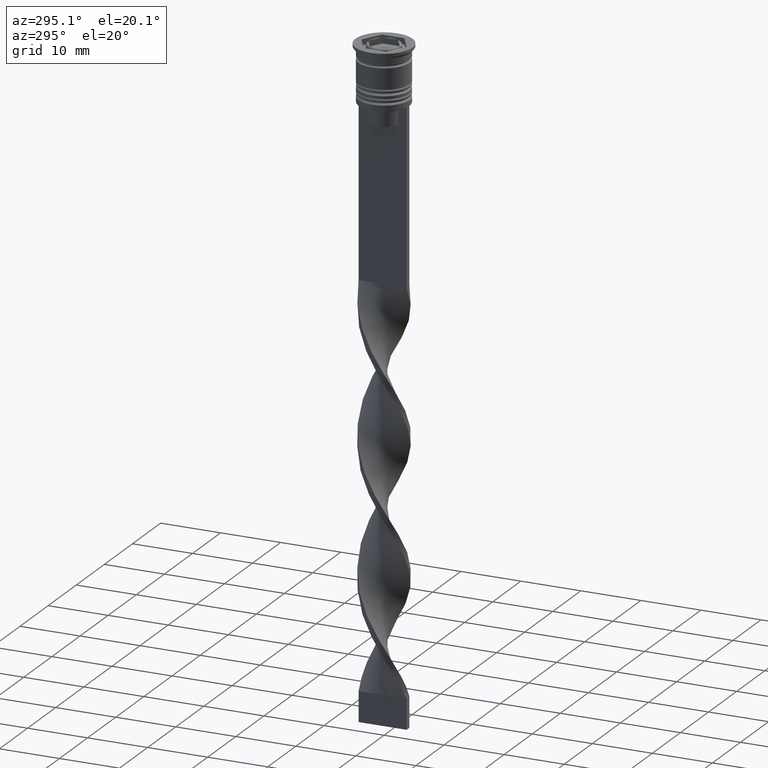
[diagram: clean part render]
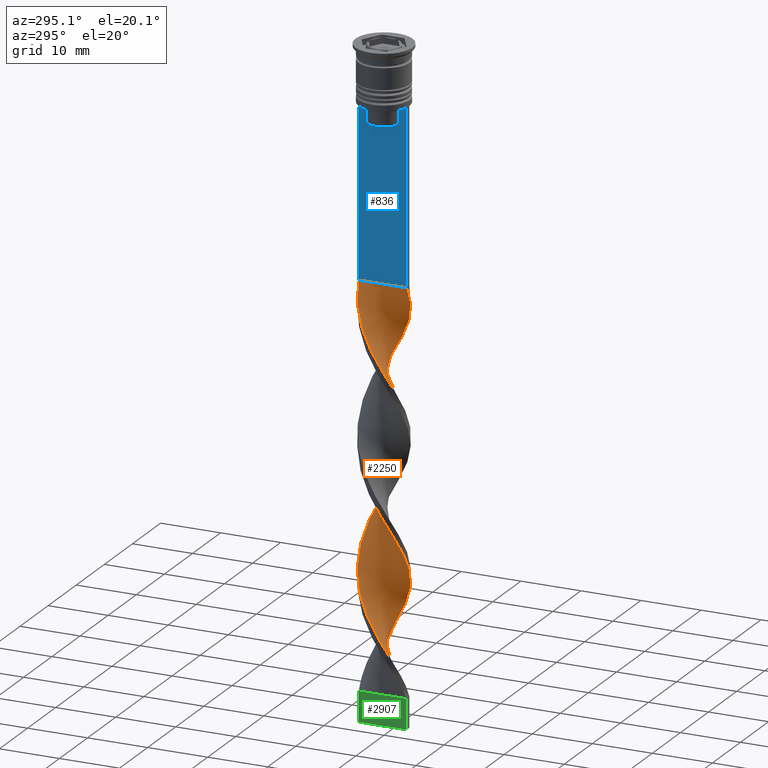
[diagram: same view with three faces highlighted in distinct colors, each labeled with its STEP entity id]
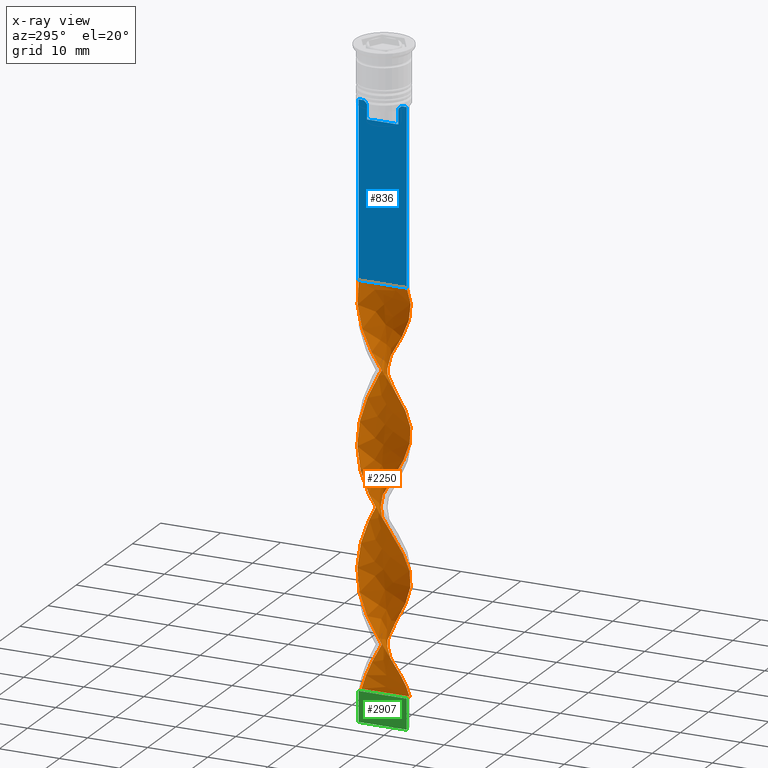
[diagram: x-ray of the same camera — body ghosted, the three highlighted faces saturated]
A machine part, auxiliary view with three faces highlighted in distinct colors.
The next image is the same camera in x-ray (body ghosted, the three faces saturated) — at least one of them is partly hidden behind the body in this view.
Their STEP definitions:

[orange] entity #2250 — the highlighted face is a freeform B-spline surface patch.
#6 = CARTESIAN_POINT ( 'NONE',  ( 3.562762527220391551, 1.885927669512849514, -74.03846153846153300 ) ) ;
#8 = CARTESIAN_POINT ( 'NONE',  ( -1.874433786711571015, -3.602232165184603652, -56.26923076923076650 ) ) ;
#19 = CARTESIAN_POINT ( 'NONE',  ( -4.032828965577023972, 0.4752569063773721680, -91.80769230769230660 ) ) ;
#21 = CARTESIAN_POINT ( 'NONE',  ( -2.278235258877631342, -3.325604321804801256, -99.42307692307691980 ) ) ;
#36 = CARTESIAN_POINT ( 'NONE',  ( 4.032828965577023084, -0.4752569063773718350, -69.80769230769230660 ) ) ;
#38 = CARTESIAN_POINT ( 'NONE',  ( -3.562762527220391551, -1.885927669512849070, -96.03846153846154721 ) ) ;
#53 = CARTESIAN_POINT ( 'NONE',  ( 4.029378707462731413, 0.5036723384328407604, -71.50000000000001421 ) ) ;
#55 = CARTESIAN_POINT ( 'NONE',  ( -3.917367414262926673, 0.9509114268274357906, -90.96153846153845279 ) ) ;
#61 = CARTESIAN_POINT ( 'NONE',  ( -2.682036731043688782, 3.048976478425001524, -66.42307692307694822 ) ) ;
#68 = CARTESIAN_POINT ( 'NONE',  ( -1.899779198837471705, 3.588929866731989105, -85.03846153846153300 ) ) ;
#89 = CARTESIAN_POINT ( 'NONE',  ( 2.703462203165885924, -3.029995166449922728, -64.73076923076921219 ) ) ;
#119 = CARTESIAN_POINT ( 'NONE',  ( 2.682036731043690114, -3.048976478425000636, -44.42307692307692690 ) ) ;
#160 = CARTESIAN_POINT ( 'NONE',  ( 2.278235258877630010, -3.325604321804802588, -43.57692307692307310 ) ) ;
#170 = CARTESIAN_POINT ( 'NONE',  ( 3.801905862948830261, 1.426565947277498081, -96.88461538461538680 ) ) ;
#174 = CARTESIAN_POINT ( 'NONE',  ( -3.562762527220391551, -1.885927669512849070, -52.03846153846154010 ) ) ;
#176 = CARTESIAN_POINT ( 'NONE',  ( 4.031103836519878136, -0.01420771602773549663, -50.34615384615384670 ) ) ;
#184 = CARTESIAN_POINT ( 'NONE',  ( 1.899779198837473038, 3.588929866731988660, -57.96153846153846700 ) ) ;
#195 = CARTESIAN_POINT ( 'NONE',  ( -1.899779198837471705, 3.588929866731989549, -41.03846153846154010 ) ) ;
#197 = CARTESIAN_POINT ( 'NONE',  ( -4.031103836519878136, -0.01420771602773408804, -48.65384615384615330 ) ) ;
#205 = CARTESIAN_POINT ( 'NONE',  ( 3.026746007048731979, 2.662481663564005618, -99.42307692307691980 ) ) ;
#212 = CARTESIAN_POINT ( 'NONE',  ( 3.575967836940204148, 1.860767053977794516, -97.73076923076922640 ) ) ;
#222 = CARTESIAN_POINT ( 'NONE',  ( 3.791755605066377655, -1.453329977707797260, -91.80769230769230660 ) ) ;
#227 = CARTESIAN_POINT ( 'NONE',  ( 3.026746007048730647, -2.662481663564007839, -65.57692307692308020 ) ) ;
#229 = CARTESIAN_POINT ( 'NONE',  ( -4.032828965577023972, 0.4752569063773721680, -47.80769230769230660 ) ) ;
#241 = EDGE_CURVE ( 'NONE', #2775, #1376, #2264, .T. ) ;
#248 = CARTESIAN_POINT ( 'NONE',  ( -3.910567156264554534, -0.9785011580703186773, -50.34615384615384670 ) ) ;
#250 = CARTESIAN_POINT ( 'NONE',  ( 4.032828965577023084, 0.4752569063773717239, -95.19230769230769340 ) ) ;
#270 = CARTESIAN_POINT ( 'NONE',  ( 0.4717917484372050052, -4.003425101847986944, -84.19230769230769340 ) ) ;
#285 = CARTESIAN_POINT ( 'NONE',  ( -0.5000000000000000000, 4.000000000000000000, -82.50000000000000000 ) ) ;
#287 = CARTESIAN_POINT ( 'NONE',  ( 0.9578955639853692361, 3.946139212084844416, -79.96153846153846700 ) ) ;
#299 = CARTESIAN_POINT ( 'NONE',  ( -3.575967836940203703, 1.860767053977795404, -89.26923076923077360 ) ) ;
#302 = CARTESIAN_POINT ( 'NONE',  ( 4.031103836519878136, 0.01420771602773273322, -70.65384615384614619 ) ) ;
#317 = CARTESIAN_POINT ( 'NONE',  ( -4.031103836519878136, -0.01420771602773408804, -92.65384615384616041 ) ) ;
#320 = CARTESIAN_POINT ( 'NONE',  ( 3.917367414262926673, -0.9509114268274362347, -68.96153846153846700 ) ) ;
#321 = EDGE_LOOP ( 'NONE', ( #1331, #2447, #1427, #1393 ) ) ;
#327 = CARTESIAN_POINT ( 'NONE',  ( 3.350029810931577590, 2.294968160678091618, -54.57692307692308731 ) ) ;
#331 = CARTESIAN_POINT ( 'NONE',  ( 1.416164675348472235, 3.774185688634722702, -79.11538461538461320 ) ) ;
#334 = CARTESIAN_POINT ( 'NONE',  ( 0.4717917484372087800, 4.003425101847986056, -80.80769230769230660 ) ) ;
#345 = CARTESIAN_POINT ( 'NONE',  ( 2.682036731043689670, -3.048976478425000636, -44.42307692307691980 ) ) ;
#379 = CARTESIAN_POINT ( 'NONE',  ( -0.5000000000000000000, 4.000000000000000000, -38.50000000000000000 ) ) ;
#410 = CARTESIAN_POINT ( 'NONE',  ( 3.333769449374405003, -2.318525361317902878, -46.11538461538462741 ) ) ;
#422 = CARTESIAN_POINT ( 'NONE',  ( 3.026746007048731979, 2.662481663564005618, -55.42307692307691980 ) ) ;
#432 = CARTESIAN_POINT ( 'NONE',  ( 0.9856879328890439940, 3.939289008388870084, -59.65384615384615330 ) ) ;
#439 = CARTESIAN_POINT ( 'NONE',  ( 3.333769449374404559, -2.318525361317903322, -90.11538461538462741 ) ) ;
#441 = LINE ( 'NONE', #2688, #3531 ) ;
#445 = CARTESIAN_POINT ( 'NONE',  ( 4.029378707462731413, -0.5036723384328416486, -49.50000000000000000 ) ) ;
#453 = CARTESIAN_POINT ( 'NONE',  ( 1.874433786711570349, -3.602232165184604096, -86.73076923076922640 ) ) ;
#460 = CARTESIAN_POINT ( 'NONE',  ( -1.442733565863256961, 3.764109437560429150, -40.19230769230769340 ) ) ;
#469 = CARTESIAN_POINT ( 'NONE',  ( 0.9856879328890441050, 3.939289008388869640, -59.65384615384615330 ) ) ;
#480 = CARTESIAN_POINT ( 'NONE',  ( -1.874433786711570793, -3.602232165184603652, -56.26923076923076650 ) ) ;
#482 = CARTESIAN_POINT ( 'NONE',  ( -2.301620701001681368, -3.309462516590953474, -79.11538461538461320 ) ) ;
#492 = CARTESIAN_POINT ( 'NONE',  ( -0.9856879328890445491, -3.939289008388869640, -81.65384615384616041 ) ) ;
#498 = CARTESIAN_POINT ( 'NONE',  ( -2.682036731043691002, -3.048976478424999303, -54.57692307692308731 ) ) ;
#500 = CARTESIAN_POINT ( 'NONE',  ( 3.801905862948830261, 1.426565947277498081, -96.88461538461538680 ) ) ;
#516 = CARTESIAN_POINT ( 'NONE',  ( 2.682036731043689670, -3.048976478425000636, -88.42307692307693401 ) ) ;
#540 = CARTESIAN_POINT ( 'NONE',  ( -0.4717917484372064485, -4.003425101847986056, -58.80769230769231370 ) ) ;
#556 = CARTESIAN_POINT ( 'NONE',  ( 0.4999999999999994449, -4.000000000000000000, -104.5000000000000142 ) ) ;
#558 = CARTESIAN_POINT ( 'NONE',  ( -3.910567156264554534, -0.9785011580703186773, -94.34615384615385381 ) ) ;
#572 = CARTESIAN_POINT ( 'NONE',  ( -0.4717917484372064485, -4.003425101847986056, -102.8076923076923208 ) ) ;
#574 = CARTESIAN_POINT ( 'NONE',  ( 1.416164675348472235, 3.774185688634722702, -79.11538461538461320 ) ) ;
#602 = CARTESIAN_POINT ( 'NONE',  ( 3.575967836940204148, 1.860767053977794516, -53.73076923076923350 ) ) ;
#609 = CARTESIAN_POINT ( 'NONE',  ( 4.032828965577023084, -0.4752569063773718350, -69.80769230769230660 ) ) ;
#684 = CARTESIAN_POINT ( 'NONE',  ( -1.416164675348468904, 3.774185688634723590, -63.88461538461538680 ) ) ;
#691 = CARTESIAN_POINT ( 'NONE',  ( 4.029378707462731413, -0.5036723384328416486, -49.50000000000000000 ) ) ;
#699 = FACE_OUTER_BOUND ( 'NONE', #321, .T. ) ;
#704 = CARTESIAN_POINT ( 'NONE',  ( 0.5000000000000005551, 4.000000000000000000, -104.5000000000000142 ) ) ;
#711 = CARTESIAN_POINT ( 'NONE',  ( -0.01431206711095789862, -4.060710991611130360, -83.34615384615386802 ) ) ;
#730 = CARTESIAN_POINT ( 'NONE',  ( 2.301620701001679148, 3.309462516590954806, -101.1153846153846132 ) ) ;
#735 = CARTESIAN_POINT ( 'NONE',  ( -3.575967836940203703, 1.860767053977795404, -45.26923076923076650 ) ) ;
#737 = CARTESIAN_POINT ( 'NONE',  ( -3.575967836940204148, -1.860767053977794072, -75.73076923076924061 ) ) ;
#746 = CARTESIAN_POINT ( 'NONE',  ( -1.442733565863260736, -3.764109437560427818, -80.80769230769230660 ) ) ;
#753 = CARTESIAN_POINT ( 'NONE',  ( -0.9856879328890421066, 3.939289008388869640, -39.34615384615384670 ) ) ;
#755 = CARTESIAN_POINT ( 'NONE',  ( 3.791755605066377655, -1.453329977707797260, -91.80769230769230660 ) ) ;
#767 = CARTESIAN_POINT ( 'NONE',  ( -0.4717917484372037285, 4.003425101847986944, -62.19230769230769340 ) ) ;
#778 = CARTESIAN_POINT ( 'NONE',  ( -0.5000000000000000000, 4.000000000000000000, -38.50000000000000000 ) ) ;
#786 = CARTESIAN_POINT ( 'NONE',  ( 2.301620701001679148, 3.309462516590954806, -57.11538461538461320 ) ) ;
#794 = CARTESIAN_POINT ( 'NONE',  ( 1.899779198837470373, -3.588929866731989993, -63.03846153846154010 ) ) ;
#796 = CARTESIAN_POINT ( 'NONE',  ( -3.026746007048732423, -2.662481663564005174, -77.42307692307693401 ) ) ;
#809 = CARTESIAN_POINT ( 'NONE',  ( -3.791755605066377655, -1.453329977707796816, -95.19230769230769340 ) ) ;
#811 = CARTESIAN_POINT ( 'NONE',  ( -2.682036731043690558, -3.048976478424999303, -54.57692307692308731 ) ) ;
#830 = CARTESIAN_POINT ( 'NONE',  ( 3.007903090209048891, 2.683750919871450868, -75.73076923076924061 ) ) ;
#832 = CARTESIAN_POINT ( 'NONE',  ( -0.01431206711095556715, 4.060710991611130360, -81.65384615384616041 ) ) ;
#860 = CARTESIAN_POINT ( 'NONE',  ( -2.703462203165886368, 3.029995166449922284, -86.73076923076922640 ) ) ;
#862 = CARTESIAN_POINT ( 'NONE',  ( -1.416164675348469792, -3.774185688634723146, -101.1153846153846132 ) ) ;
#875 = CARTESIAN_POINT ( 'NONE',  ( 2.682036731043692779, 3.048976478424997527, -76.57692307692306599 ) ) ;
#879 = CARTESIAN_POINT ( 'NONE',  ( -3.026746007048731091, 2.662481663564006951, -87.57692307692308020 ) ) ;
#891 = CARTESIAN_POINT ( 'NONE',  ( 2.703462203165886368, 3.029995166449921840, -56.26923076923076650 ) ) ;
#945 = CARTESIAN_POINT ( 'NONE',  ( 1.874433786711570349, -3.602232165184604096, -42.73076923076923350 ) ) ;
#953 = CARTESIAN_POINT ( 'NONE',  ( 3.910567156264554534, -0.9785011580703200096, -48.65384615384615330 ) ) ;
#961 = CARTESIAN_POINT ( 'NONE',  ( 4.031103836519878136, -0.01420771602773549663, -50.34615384615384670 ) ) ;
#969 = CARTESIAN_POINT ( 'NONE',  ( -3.791755605066377655, 1.453329977707796816, -69.80769230769230660 ) ) ;
#981 = CARTESIAN_POINT ( 'NONE',  ( -0.5000000000000000000, 4.000000000000000000, -38.50000000000000000 ) ) ;
#984 = CARTESIAN_POINT ( 'NONE',  ( -4.031103836519877248, 0.01420771602773772055, -72.34615384615383959 ) ) ;
#996 = CARTESIAN_POINT ( 'NONE',  ( -3.917367414262927561, -0.9509114268274349024, -74.03846153846153300 ) ) ;
#1004 = CARTESIAN_POINT ( 'NONE',  ( -0.01431206711095789688, -4.060710991611130360, -39.34615384615384670 ) ) ;
#1013 = CARTESIAN_POINT ( 'NONE',  ( 0.9578955639853675708, -3.946139212084843972, -85.03846153846153300 ) ) ;
#1018 = CARTESIAN_POINT ( 'NONE',  ( 3.917367414262926673, -0.9509114268274362347, -68.96153846153846700 ) ) ;
#1020 = CARTESIAN_POINT ( 'NONE',  ( 3.007903090209047559, -2.683750919871451757, -89.26923076923077360 ) ) ;
#1031 = CARTESIAN_POINT ( 'NONE',  ( 0.5000000000000005551, 4.000000000000000000, -60.50000000000000000 ) ) ;
#1040 = CARTESIAN_POINT ( 'NONE',  ( 3.333769449374405003, -2.318525361317902878, -90.11538461538462741 ) ) ;
#1051 = CARTESIAN_POINT ( 'NONE',  ( -3.910567156264554534, 0.9785011580703212308, -70.65384615384614619 ) ) ;
#1060 = CARTESIAN_POINT ( 'NONE',  ( 3.575967836940203703, -1.860767053977795404, -67.26923076923077360 ) ) ;
#1062 = CARTESIAN_POINT ( 'NONE',  ( 0.9578955639853675708, -3.946139212084844416, -85.03846153846153300 ) ) ;
#1077 = CARTESIAN_POINT ( 'NONE',  ( -2.278235258877631342, -3.325604321804801256, -99.42307692307691980 ) ) ;
#1079 = CARTESIAN_POINT ( 'NONE',  ( 2.278235258877630010, -3.325604321804802588, -87.57692307692308020 ) ) ;
#1094 = CARTESIAN_POINT ( 'NONE',  ( 2.278235258877631786, 3.325604321804800811, -77.42307692307693401 ) ) ;
#1096 = CARTESIAN_POINT ( 'NONE',  ( 0.01431206711095605461, -4.060710991611130360, -59.65384615384615330 ) ) ;
#1116 = CARTESIAN_POINT ( 'NONE',  ( -3.026746007048731091, 2.662481663564006951, -87.57692307692308020 ) ) ;
#1134 = CARTESIAN_POINT ( 'NONE',  ( -3.007903090209048003, -2.683750919871450868, -97.73076923076922640 ) ) ;
#1150 = CARTESIAN_POINT ( 'NONE',  ( -0.4717917484372064485, -4.003425101847986056, -102.8076923076923208 ) ) ;
#1163 = EDGE_CURVE ( 'NONE', #1622, #1376, #3509, .T. ) ;
#1169 = CARTESIAN_POINT ( 'NONE',  ( -3.801905862948830706, 1.426565947277498525, -90.11538461538462741 ) ) ;
#1213 = CARTESIAN_POINT ( 'NONE',  ( 0.5000000000000005551, 4.000000000000000000, -104.5000000000000142 ) ) ;
#1214 = CARTESIAN_POINT ( 'NONE',  ( 3.562762527220391107, -1.885927669512850402, -46.96153846153845990 ) ) ;
#1241 = CARTESIAN_POINT ( 'NONE',  ( -2.278235258877629565, 3.325604321804802588, -65.57692307692308020 ) ) ;
#1257 = CARTESIAN_POINT ( 'NONE',  ( -0.9578955639853662385, 3.946139212084844416, -63.03846153846153300 ) ) ;
#1266 = CARTESIAN_POINT ( 'NONE',  ( -4.031103836519877248, 0.01420771602773772055, -72.34615384615383959 ) ) ;
#1273 = CARTESIAN_POINT ( 'NONE',  ( -2.278235258877631342, -3.325604321804801256, -55.42307692307691980 ) ) ;
#1288 = CARTESIAN_POINT ( 'NONE',  ( -2.278235258877629565, 3.325604321804802588, -65.57692307692308020 ) ) ;
#1293 = CARTESIAN_POINT ( 'NONE',  ( 1.442733565863255851, -3.764109437560429594, -62.19230769230769340 ) ) ;
#1295 = CARTESIAN_POINT ( 'NONE',  ( 1.416164675348469126, -3.774185688634723590, -85.88461538461538680 ) ) ;
#1303 = CARTESIAN_POINT ( 'NONE',  ( -3.333769449374404115, 2.318525361317905098, -68.11538461538461320 ) ) ;
#1305 = DIRECTION ( 'NONE',  ( 0.000000000000000000, 1.000000000000000000, 0.000000000000000000 ) ) ;
#1307 = CARTESIAN_POINT ( 'NONE',  ( -2.301620701001678704, 3.309462516590955250, -41.88461538461537970 ) ) ;
#1310 = CARTESIAN_POINT ( 'NONE',  ( -3.801905862948831150, -1.426565947277496083, -74.88461538461538680 ) ) ;
#1320 = CARTESIAN_POINT ( 'NONE',  ( -2.301620701001681368, -3.309462516590953474, -79.11538461538461320 ) ) ;
#1327 = CARTESIAN_POINT ( 'NONE',  ( -3.910567156264554534, -0.9785011580703186773, -50.34615384615384670 ) ) ;
#1331 = ORIENTED_EDGE ( 'NONE', *, *, #1358, .T. ) ;
#1345 = CARTESIAN_POINT ( 'NONE',  ( -3.333769449374405447, -2.318525361317902878, -52.88461538461538680 ) ) ;
#1347 = CARTESIAN_POINT ( 'NONE',  ( 0.5000000000000005551, 4.000000000000000000, -104.5000000000000142 ) ) ;
#1358 = EDGE_CURVE ( 'NONE', #2469, #2775, #441, .T. ) ;
#1368 = CARTESIAN_POINT ( 'NONE',  ( -3.026746007048731091, 2.662481663564006951, -43.57692307692307310 ) ) ;
#1376 = VERTEX_POINT ( 'NONE', #2122 ) ;
#1387 = CARTESIAN_POINT ( 'NONE',  ( -1.442733565863256961, 3.764109437560429150, -84.19230769230769340 ) ) ;
#1393 = ORIENTED_EDGE ( 'NONE', *, *, #2559, .F. ) ;
#1404 = CARTESIAN_POINT ( 'NONE',  ( -0.01431206711095556715, 4.060710991611130360, -81.65384615384616041 ) ) ;
#1406 = CARTESIAN_POINT ( 'NONE',  ( 3.791755605066378987, 1.453329977707795484, -73.19230769230770761 ) ) ;
#1422 = CARTESIAN_POINT ( 'NONE',  ( 2.682036731043692335, 3.048976478424997527, -76.57692307692306599 ) ) ;
#1427 = ORIENTED_EDGE ( 'NONE', *, *, #1163, .F. ) ;
#1438 = CARTESIAN_POINT ( 'NONE',  ( 2.278235258877631786, 3.325604321804800811, -77.42307692307693401 ) ) ;
#1456 = CARTESIAN_POINT ( 'NONE',  ( 3.026746007048730647, -2.662481663564007839, -65.57692307692308020 ) ) ;
#1474 = CARTESIAN_POINT ( 'NONE',  ( 3.350029810931577590, 2.294968160678091174, -54.57692307692308731 ) ) ;
#1491 = CARTESIAN_POINT ( 'NONE',  ( 0.4717917484372050052, -4.003425101847986944, -40.19230769230769340 ) ) ;
#1517 = CARTESIAN_POINT ( 'NONE',  ( 3.007903090209047559, -2.683750919871451757, -45.26923076923076650 ) ) ;
#1530 = CARTESIAN_POINT ( 'NONE',  ( 3.007903090209047559, -2.683750919871451757, -45.26923076923076650 ) ) ;
#1546 = CARTESIAN_POINT ( 'NONE',  ( 0.4717917484372050052, -4.003425101847986944, -84.19230769230769340 ) ) ;
#1561 = CARTESIAN_POINT ( 'NONE',  ( 0.01431206711095876771, 4.060710991611130360, -61.34615384615383249 ) ) ;
#1570 = CARTESIAN_POINT ( 'NONE',  ( -2.703462203165886812, -3.029995166449921840, -78.26923076923075939 ) ) ;
#1582 = CARTESIAN_POINT ( 'NONE',  ( 3.562762527220391107, -1.885927669512850402, -90.96153846153845279 ) ) ;
#1591 = CARTESIAN_POINT ( 'NONE',  ( -0.4717917484372064485, -4.003425101847986056, -58.80769230769231370 ) ) ;
#1593 = CARTESIAN_POINT ( 'NONE',  ( 2.703462203165886368, 3.029995166449921840, -100.2692307692307878 ) ) ;
#1603 = CARTESIAN_POINT ( 'NONE',  ( 3.007903090209047559, -2.683750919871451757, -89.26923076923077360 ) ) ;
#1610 = CARTESIAN_POINT ( 'NONE',  ( 0.4999999999999994449, -4.000000000000000000, -60.50000000000000000 ) ) ;
#1612 = CARTESIAN_POINT ( 'NONE',  ( -2.703462203165886368, 3.029995166449922284, -42.73076923076923350 ) ) ;
#1622 = VERTEX_POINT ( 'NONE', #1213 ) ;
#1629 = CARTESIAN_POINT ( 'NONE',  ( 3.562762527220391107, -1.885927669512850402, -90.96153846153845279 ) ) ;
#1644 =( BOUNDED_CURVE ( )  B_SPLINE_CURVE ( 2, ( #1782, #2864, #1491, #2594, #2346, #945, #3432, #119, #1530, #3147, #1214, #2290, #2049, #691, #961, #1800, #2899, #2013, #3110, #1474, #422, #3450, #786, #184, #2434, #469, #1031, #1561, #767, #3237, #1838, #2702, #1288, #3526, #2138, #1303, #2929, #1873, #1051, #2162, #1266, #2965, #996, #3217, #2120, #2418, #3263, #2665, #1320, #1890, #746, #492, #1823, #711, #1546, #1013, #3466, #453, #2915, #2102, #1603, #439, #1582, #222, #1853, #2401, #3484, #2649, #3506, #170, #2945, #2686, #205, #2380, #730, #3200, #3442, #3121, #704 ),
 .UNSPECIFIED., .F., .T. ) 
 B_SPLINE_CURVE_WITH_KNOTS ( ( 3, 2, 2, 2, 2, 2, 2, 2, 2, 2, 2, 2, 2, 2, 2, 2, 2, 2, 2, 2, 2, 2, 2, 2, 2, 2, 2, 2, 2, 2, 2, 2, 2, 2, 2, 2, 2, 2, 2, 3 ),
 ( 0.000000000000000000, 0.01923076923076923184, 0.03846153846153846367, 0.05769230769230768857, 0.07692307692307692735, 0.09615384615384615918, 0.1153846153846153771, 0.1346153846153846090, 0.1538461538461538547, 0.1730769230769230449, 0.1923076923076923184, 0.2115384615384615363, 0.2307692307692307543, 0.2500000000000000000, 0.2692307692307692180, 0.2884615384615384359, 0.3076923076923077094, 0.3269230769230769273, 0.3461538461538460898, 0.3653846153846153633, 0.3846153846153846367, 0.4038461538461539102, 0.4230769230769230727, 0.4423076923076922906, 0.4615384615384615086, 0.4807692307692307820, 0.5000000000000000000, 0.5192307692307692735, 0.5384615384615384359, 0.5576923076923077094, 0.5769230769230768718, 0.5961538461538461453, 0.6153846153846154188, 0.6346153846153845812, 0.6538461538461538547, 0.6730769230769230171, 0.6923076923076921796, 0.7115384615384615641, 0.7307692307692307265, 0.7500000000000000000 ),
 .UNSPECIFIED. ) 
 CURVE ( )  GEOMETRIC_REPRESENTATION_ITEM ( )  RATIONAL_B_SPLINE_CURVE ( ( 1.000000000000000000, 0.9927088740980539727, 1.000000000000000000, 0.9927088740980539727, 1.000000000000000000, 0.9927088740980539727, 1.000000000000000000, 0.9927088740980539727, 1.000000000000000000, 0.9927088740980539727, 1.000000000000000000, 0.9927088740980539727, 1.000000000000000000, 0.9927088740980539727, 1.000000000000000000, 0.9927088740980539727, 1.000000000000000000, 0.9927088740980539727, 1.000000000000000000, 0.9927088740980539727, 1.000000000000000000, 0.9927088740980539727, 1.000000000000000000, 0.9927088740980539727, 1.000000000000000000, 0.9927088740980539727, 1.000000000000000000, 0.9927088740980539727, 1.000000000000000000, 0.9927088740980539727, 1.000000000000000000, 0.9927088740980539727, 1.000000000000000000, 0.9927088740980539727, 1.000000000000000000, 0.9927088740980539727, 1.000000000000000000, 0.9927088740980539727, 1.000000000000000000, 0.9927088740980539727, 1.000000000000000000, 0.9927088740980539727, 1.000000000000000000, 0.9927088740980539727, 1.000000000000000000, 0.9927088740980539727, 1.000000000000000000, 0.9927088740980539727, 1.000000000000000000, 0.9927088740980539727, 1.000000000000000000, 0.9927088740980539727, 1.000000000000000000, 0.9927088740980539727, 1.000000000000000000, 0.9927088740980539727, 1.000000000000000000, 0.9927088740980539727, 1.000000000000000000, 0.9927088740980539727, 1.000000000000000000, 0.9927088740980539727, 1.000000000000000000, 0.9927088740980539727, 1.000000000000000000, 0.9927088740980539727, 1.000000000000000000, 0.9927088740980539727, 1.000000000000000000, 0.9927088740980539727, 1.000000000000000000, 0.9927088740980539727, 1.000000000000000000, 0.9927088740980539727, 1.000000000000000000, 0.9927088740980539727, 1.000000000000000000, 0.9927088740980539727, 1.000000000000000000 ) ) 
 REPRESENTATION_ITEM ( '' )  );
#1651 = CARTESIAN_POINT ( 'NONE',  ( 1.874433786711570571, -3.602232165184604096, -86.73076923076922640 ) ) ;
#1667 = CARTESIAN_POINT ( 'NONE',  ( -3.791755605066377655, -1.453329977707796816, -95.19230769230769340 ) ) ;
#1680 = CARTESIAN_POINT ( 'NONE',  ( -2.301620701001678704, 3.309462516590955250, -85.88461538461538680 ) ) ;
#1682 = CARTESIAN_POINT ( 'NONE',  ( -4.032828965577023972, 0.4752569063773721680, -91.80769230769230660 ) ) ;
#1702 = CARTESIAN_POINT ( 'NONE',  ( -1.874433786711571015, -3.602232165184603652, -100.2692307692307878 ) ) ;
#1713 = CARTESIAN_POINT ( 'NONE',  ( 3.801905862948830261, 1.426565947277498081, -52.88461538461537970 ) ) ;
#1717 = CARTESIAN_POINT ( 'NONE',  ( -4.029378707462731413, -0.5036723384328412045, -93.50000000000000000 ) ) ;
#1719 = CARTESIAN_POINT ( 'NONE',  ( 3.910567156264555422, 0.9785011580703162348, -72.34615384615383959 ) ) ;
#1728 = CARTESIAN_POINT ( 'NONE',  ( 0.4717917484372050052, -4.003425101847986944, -40.19230769230769340 ) ) ;
#1782 = CARTESIAN_POINT ( 'NONE',  ( -0.5000000000000000000, -4.000000000000000000, -38.50000000000000000 ) ) ;
#1791 = CARTESIAN_POINT ( 'NONE',  ( -3.007903090209047559, 2.683750919871451757, -67.26923076923077360 ) ) ;
#1800 = CARTESIAN_POINT ( 'NONE',  ( 4.032828965577023084, 0.4752569063773717239, -51.19230769230768630 ) ) ;
#1813 = CARTESIAN_POINT ( 'NONE',  ( 0.9578955639853675708, -3.946139212084844416, -41.03846153846154010 ) ) ;
#1823 = CARTESIAN_POINT ( 'NONE',  ( -0.5000000000000000000, -4.000000000000000000, -82.50000000000000000 ) ) ;
#1828 = CARTESIAN_POINT ( 'NONE',  ( -3.350029810931576701, 2.294968160678092506, -44.42307692307692690 ) ) ;
#1830 = CARTESIAN_POINT ( 'NONE',  ( -3.333769449374404559, 2.318525361317904654, -68.11538461538462741 ) ) ;
#1838 = CARTESIAN_POINT ( 'NONE',  ( -1.416164675348468904, 3.774185688634723590, -63.88461538461538680 ) ) ;
#1843 = CARTESIAN_POINT ( 'NONE',  ( 0.9856879328890412184, -3.939289008388869640, -61.34615384615383249 ) ) ;
#1845 = CARTESIAN_POINT ( 'NONE',  ( 0.4999999999999994449, -4.000000000000000000, -60.50000000000000000 ) ) ;
#1853 = CARTESIAN_POINT ( 'NONE',  ( 3.910567156264554534, -0.9785011580703200096, -92.65384615384616041 ) ) ;
#1858 = CARTESIAN_POINT ( 'NONE',  ( -1.416164675348469792, -3.774185688634723146, -57.11538461538461320 ) ) ;
#1861 = CARTESIAN_POINT ( 'NONE',  ( 4.031103836519878136, -0.01420771602773549663, -94.34615384615385381 ) ) ;
#1873 = CARTESIAN_POINT ( 'NONE',  ( -3.791755605066377655, 1.453329977707796816, -69.80769230769230660 ) ) ;
#1882 = CARTESIAN_POINT ( 'NONE',  ( -0.9856879328890421066, 3.939289008388870084, -39.34615384615384670 ) ) ;
#1890 = CARTESIAN_POINT ( 'NONE',  ( -1.899779198837473482, -3.588929866731988660, -79.96153846153846700 ) ) ;
#1896 = CARTESIAN_POINT ( 'NONE',  ( -3.026746007048731091, 2.662481663564006951, -43.57692307692307310 ) ) ;
#1898 = CARTESIAN_POINT ( 'NONE',  ( -1.442733565863260736, -3.764109437560427818, -80.80769230769230660 ) ) ;
#1913 = CARTESIAN_POINT ( 'NONE',  ( -2.278235258877631342, -3.325604321804801256, -55.42307692307691980 ) ) ;
#1935 = CARTESIAN_POINT ( 'NONE',  ( -0.9856879328890421066, 3.939289008388869640, -83.34615384615386802 ) ) ;
#1937 = CARTESIAN_POINT ( 'NONE',  ( -3.350029810931576701, 2.294968160678092506, -88.42307692307693401 ) ) ;
#1953 = CARTESIAN_POINT ( 'NONE',  ( 3.562762527220391551, 1.885927669512849514, -74.03846153846153300 ) ) ;
#1967 = CARTESIAN_POINT ( 'NONE',  ( -3.007903090209048003, -2.683750919871450868, -97.73076923076922640 ) ) ;
#1970 = CARTESIAN_POINT ( 'NONE',  ( 1.442733565863255851, -3.764109437560429594, -62.19230769230769340 ) ) ;
#1985 = CARTESIAN_POINT ( 'NONE',  ( -3.801905862948830706, 1.426565947277498525, -90.11538461538462741 ) ) ;
#1987 = CARTESIAN_POINT ( 'NONE',  ( 0.4999999999999994449, -4.000000000000000000, -104.5000000000000142 ) ) ;
#1995 = CARTESIAN_POINT ( 'NONE',  ( 1.442733565863258516, 3.764109437560428262, -58.80769230769231370 ) ) ;
#2013 = CARTESIAN_POINT ( 'NONE',  ( 3.801905862948830261, 1.426565947277498081, -52.88461538461538680 ) ) ;
#2049 = CARTESIAN_POINT ( 'NONE',  ( 3.910567156264554534, -0.9785011580703200096, -48.65384615384615330 ) ) ;
#2057 = CARTESIAN_POINT ( 'NONE',  ( 2.301620701001679148, 3.309462516590954806, -57.11538461538461320 ) ) ;
#2076 = CARTESIAN_POINT ( 'NONE',  ( -3.910567156264554534, 0.9785011580703212308, -70.65384615384614619 ) ) ;
#2091 = CARTESIAN_POINT ( 'NONE',  ( 0.01431206711095605461, -4.060710991611130360, -59.65384615384615330 ) ) ;
#2093 = CARTESIAN_POINT ( 'NONE',  ( -4.032828965577023972, -0.4752569063773701696, -73.19230769230770761 ) ) ;
#2102 = CARTESIAN_POINT ( 'NONE',  ( 2.682036731043690114, -3.048976478425000636, -88.42307692307691980 ) ) ;
#2106 = CARTESIAN_POINT ( 'NONE',  ( -3.801905862948830706, 1.426565947277498525, -46.11538461538462030 ) ) ;
#2109 = CARTESIAN_POINT ( 'NONE',  ( 3.791755605066377655, -1.453329977707797260, -47.80769230769230660 ) ) ;
#2120 = CARTESIAN_POINT ( 'NONE',  ( -3.575967836940204148, -1.860767053977794072, -75.73076923076924061 ) ) ;
#2122 = CARTESIAN_POINT ( 'NONE',  ( 0.4999999999999994449, -4.000000000000000000, -104.5000000000000142 ) ) ;
#2128 = CARTESIAN_POINT ( 'NONE',  ( 3.350029810931577590, 2.294968160678091618, -98.57692307692310862 ) ) ;
#2138 = CARTESIAN_POINT ( 'NONE',  ( -3.007903090209047559, 2.683750919871451757, -67.26923076923077360 ) ) ;
#2143 = CARTESIAN_POINT ( 'NONE',  ( -3.917367414262926673, 0.9509114268274357906, -46.96153846153845990 ) ) ;
#2146 = CARTESIAN_POINT ( 'NONE',  ( 1.899779198837473038, 3.588929866731988216, -101.9615384615384670 ) ) ;
#2162 = CARTESIAN_POINT ( 'NONE',  ( -4.029378707462731413, 0.5036723384328422037, -71.50000000000001421 ) ) ;
#2168 = CARTESIAN_POINT ( 'NONE',  ( 3.801905862948829373, -1.426565947277500745, -68.11538461538461320 ) ) ;
#2171 = CARTESIAN_POINT ( 'NONE',  ( 3.026746007048731979, 2.662481663564005618, -99.42307692307691980 ) ) ;
#2188 = CARTESIAN_POINT ( 'NONE',  ( -1.874433786711570793, -3.602232165184603652, -100.2692307692307878 ) ) ;
#2190 = CARTESIAN_POINT ( 'NONE',  ( -3.333769449374405447, -2.318525361317902433, -52.88461538461537970 ) ) ;
#2207 = CARTESIAN_POINT ( 'NONE',  ( 0.9578955639853693471, 3.946139212084843972, -79.96153846153846700 ) ) ;
#2208 = CARTESIAN_POINT ( 'NONE',  ( 3.350029810931575813, -2.294968160678093394, -66.42307692307694822 ) ) ;
#2225 = CARTESIAN_POINT ( 'NONE',  ( -1.442733565863256961, 3.764109437560429150, -84.19230769230769340 ) ) ;
#2244 = CARTESIAN_POINT ( 'NONE',  ( -0.9578955639853687920, -3.946139212084844416, -101.9615384615384670 ) ) ;
#2250 = ADVANCED_FACE ( 'NONE', ( #699 ), #2994, .T. ) ;
#2257 = CARTESIAN_POINT ( 'NONE',  ( -3.350029810931576701, 2.294968160678092506, -88.42307692307691980 ) ) ;
#2259 = CARTESIAN_POINT ( 'NONE',  ( -4.031103836519878136, -0.01420771602773408804, -92.65384615384616041 ) ) ;
#2264 =( BOUNDED_CURVE ( )  B_SPLINE_CURVE ( 2, ( #981, #753, #2723, #195, #1307, #2988, #1896, #1828, #735, #2106, #2143, #3513, #2919, #2934, #248, #3247, #174, #1345, #2440, #498, #1273, #480, #1858, #2408, #1591, #2091, #1610, #1843, #1293, #794, #2707, #3490, #227, #3533, #1060, #2168, #1018, #36, #2479, #53, #2493, #3554, #6, #3304, #830, #875, #1094, #3337, #331, #2207, #3080, #1404, #285, #1935, #2225, #2512, #1680, #860, #1116, #2257, #299, #1985, #3287, #19, #317, #1717, #3031, #809, #3322, #2812, #1967, #2462, #1077, #2188, #2764, #3353, #572, #3063, #556 ),
 .UNSPECIFIED., .F., .T. ) 
 B_SPLINE_CURVE_WITH_KNOTS ( ( 3, 2, 2, 2, 2, 2, 2, 2, 2, 2, 2, 2, 2, 2, 2, 2, 2, 2, 2, 2, 2, 2, 2, 2, 2, 2, 2, 2, 2, 2, 2, 2, 2, 2, 2, 2, 2, 2, 2, 3 ),
 ( 0.000000000000000000, 0.01923076923076923184, 0.03846153846153846367, 0.05769230769230768857, 0.07692307692307692735, 0.09615384615384615918, 0.1153846153846153771, 0.1346153846153846090, 0.1538461538461538547, 0.1730769230769230449, 0.1923076923076923184, 0.2115384615384615363, 0.2307692307692307543, 0.2500000000000000000, 0.2692307692307692180, 0.2884615384615384359, 0.3076923076923077094, 0.3269230769230769273, 0.3461538461538460898, 0.3653846153846153633, 0.3846153846153846367, 0.4038461538461539102, 0.4230769230769230727, 0.4423076923076922906, 0.4615384615384615086, 0.4807692307692307820, 0.5000000000000000000, 0.5192307692307692735, 0.5384615384615384359, 0.5576923076923077094, 0.5769230769230768718, 0.5961538461538461453, 0.6153846153846154188, 0.6346153846153845812, 0.6538461538461538547, 0.6730769230769230171, 0.6923076923076921796, 0.7115384615384615641, 0.7307692307692307265, 0.7500000000000000000 ),
 .UNSPECIFIED. ) 
 CURVE ( )  GEOMETRIC_REPRESENTATION_ITEM ( )  RATIONAL_B_SPLINE_CURVE ( ( 1.000000000000000000, 0.9927088740980539727, 1.000000000000000000, 0.9927088740980539727, 1.000000000000000000, 0.9927088740980539727, 1.000000000000000000, 0.9927088740980539727, 1.000000000000000000, 0.9927088740980539727, 1.000000000000000000, 0.9927088740980539727, 1.000000000000000000, 0.9927088740980539727, 1.000000000000000000, 0.9927088740980539727, 1.000000000000000000, 0.9927088740980539727, 1.000000000000000000, 0.9927088740980539727, 1.000000000000000000, 0.9927088740980539727, 1.000000000000000000, 0.9927088740980539727, 1.000000000000000000, 0.9927088740980539727, 1.000000000000000000, 0.9927088740980539727, 1.000000000000000000, 0.9927088740980539727, 1.000000000000000000, 0.9927088740980539727, 1.000000000000000000, 0.9927088740980539727, 1.000000000000000000, 0.9927088740980539727, 1.000000000000000000, 0.9927088740980539727, 1.000000000000000000, 0.9927088740980539727, 1.000000000000000000, 0.9927088740980539727, 1.000000000000000000, 0.9927088740980539727, 1.000000000000000000, 0.9927088740980539727, 1.000000000000000000, 0.9927088740980539727, 1.000000000000000000, 0.9927088740980539727, 1.000000000000000000, 0.9927088740980539727, 1.000000000000000000, 0.9927088740980539727, 1.000000000000000000, 0.9927088740980539727, 1.000000000000000000, 0.9927088740980539727, 1.000000000000000000, 0.9927088740980539727, 1.000000000000000000, 0.9927088740980539727, 1.000000000000000000, 0.9927088740980539727, 1.000000000000000000, 0.9927088740980539727, 1.000000000000000000, 0.9927088740980539727, 1.000000000000000000, 0.9927088740980539727, 1.000000000000000000, 0.9927088740980539727, 1.000000000000000000, 0.9927088740980539727, 1.000000000000000000, 0.9927088740980539727, 1.000000000000000000, 0.9927088740980539727, 1.000000000000000000 ) ) 
 REPRESENTATION_ITEM ( '' )  );
#2279 = CARTESIAN_POINT ( 'NONE',  ( -2.682036731043690558, -3.048976478424999303, -98.57692307692310862 ) ) ;
#2290 = CARTESIAN_POINT ( 'NONE',  ( 3.791755605066377655, -1.453329977707797260, -47.80769230769230660 ) ) ;
#2308 = CARTESIAN_POINT ( 'NONE',  ( 0.4999999999999994449, -4.000000000000000000, -104.5000000000000142 ) ) ;
#2346 = CARTESIAN_POINT ( 'NONE',  ( 1.416164675348469126, -3.774185688634723590, -41.88461538461537970 ) ) ;
#2368 = CARTESIAN_POINT ( 'NONE',  ( 0.4999999999999997780, -1.333333333333333481, -104.5000000000000142 ) ) ;
#2374 = CARTESIAN_POINT ( 'NONE',  ( -4.029378707462731413, 0.5036723384328422037, -71.50000000000000000 ) ) ;
#2380 = CARTESIAN_POINT ( 'NONE',  ( 2.703462203165886368, 3.029995166449921840, -100.2692307692307878 ) ) ;
#2401 = CARTESIAN_POINT ( 'NONE',  ( 4.029378707462731413, -0.5036723384328416486, -93.50000000000000000 ) ) ;
#2408 = CARTESIAN_POINT ( 'NONE',  ( -0.9578955639853689030, -3.946139212084843972, -57.96153846153846700 ) ) ;
#2410 = CARTESIAN_POINT ( 'NONE',  ( -1.416164675348469792, -3.774185688634723146, -57.11538461538461320 ) ) ;
#2418 = CARTESIAN_POINT ( 'NONE',  ( -3.350029810931578478, -2.294968160678088509, -76.57692307692306599 ) ) ;
#2425 = CARTESIAN_POINT ( 'NONE',  ( 4.029378707462731413, -0.5036723384328416486, -93.49999999999998579 ) ) ;
#2434 = CARTESIAN_POINT ( 'NONE',  ( 1.442733565863258516, 3.764109437560428262, -58.80769230769231370 ) ) ;
#2440 = CARTESIAN_POINT ( 'NONE',  ( -3.007903090209048003, -2.683750919871450868, -53.73076923076923350 ) ) ;
#2443 = CARTESIAN_POINT ( 'NONE',  ( -3.575967836940203703, 1.860767053977795404, -45.26923076923076650 ) ) ;
#2447 = ORIENTED_EDGE ( 'NONE', *, *, #241, .T. ) ;
#2462 = CARTESIAN_POINT ( 'NONE',  ( -2.682036731043691002, -3.048976478424999303, -98.57692307692310862 ) ) ;
#2464 = CARTESIAN_POINT ( 'NONE',  ( -4.029378707462731413, -0.5036723384328412045, -49.50000000000000000 ) ) ;
#2469 = VERTEX_POINT ( 'NONE', #2827 ) ;
#2479 = CARTESIAN_POINT ( 'NONE',  ( 4.031103836519878136, 0.01420771602773273322, -70.65384615384614619 ) ) ;
#2481 = CARTESIAN_POINT ( 'NONE',  ( -3.917367414262926673, 0.9509114268274357906, -46.96153846153845990 ) ) ;
#2493 = CARTESIAN_POINT ( 'NONE',  ( 3.910567156264555422, 0.9785011580703162348, -72.34615384615383959 ) ) ;
#2495 = CARTESIAN_POINT ( 'NONE',  ( 1.874433786711571459, 3.602232165184603652, -78.26923076923075939 ) ) ;
#2512 = CARTESIAN_POINT ( 'NONE',  ( -1.899779198837471705, 3.588929866731989549, -85.03846153846153300 ) ) ;
#2514 = CARTESIAN_POINT ( 'NONE',  ( 3.575967836940203703, -1.860767053977795404, -67.26923076923077360 ) ) ;
#2528 = CARTESIAN_POINT ( 'NONE',  ( -3.333769449374405447, -2.318525361317902433, -96.88461538461538680 ) ) ;
#2535 = CARTESIAN_POINT ( 'NONE',  ( 0.01431206711095876771, 4.060710991611130360, -61.34615384615383959 ) ) ;
#2542 = CARTESIAN_POINT ( 'NONE',  ( -0.9856879328890421066, 3.939289008388870084, -83.34615384615386802 ) ) ;
#2559 = EDGE_CURVE ( 'NONE', #2469, #1622, #1644, .T. ) ;
#2564 = CARTESIAN_POINT ( 'NONE',  ( 1.899779198837470373, -3.588929866731989549, -63.03846153846153300 ) ) ;
#2594 = CARTESIAN_POINT ( 'NONE',  ( 0.9578955639853675708, -3.946139212084843972, -41.03846153846154010 ) ) ;
#2626 = CARTESIAN_POINT ( 'NONE',  ( -1.874433786711570127, 3.602232165184604540, -64.73076923076921219 ) ) ;
#2641 = CARTESIAN_POINT ( 'NONE',  ( -0.4717917484372037285, 4.003425101847986944, -62.19230769230769340 ) ) ;
#2649 = CARTESIAN_POINT ( 'NONE',  ( 4.032828965577023084, 0.4752569063773717239, -95.19230769230769340 ) ) ;
#2658 = CARTESIAN_POINT ( 'NONE',  ( -0.5000000000000000000, -4.000000000000000000, -38.50000000000000000 ) ) ;
#2665 = CARTESIAN_POINT ( 'NONE',  ( -2.703462203165886812, -3.029995166449921840, -78.26923076923077360 ) ) ;
#2678 = CARTESIAN_POINT ( 'NONE',  ( -0.5000000000000000000, -4.000000000000000000, -82.50000000000000000 ) ) ;
#2686 = CARTESIAN_POINT ( 'NONE',  ( 3.350029810931577590, 2.294968160678091174, -98.57692307692310862 ) ) ;
#2688 = CARTESIAN_POINT ( 'NONE',  ( -0.5000000000000000000, -4.000000000000000000, -38.50000000000000000 ) ) ;
#2694 = CARTESIAN_POINT ( 'NONE',  ( -0.01431206711095789688, -4.060710991611130360, -83.34615384615386802 ) ) ;
#2702 = CARTESIAN_POINT ( 'NONE',  ( -1.874433786711570127, 3.602232165184604540, -64.73076923076922640 ) ) ;
#2707 = CARTESIAN_POINT ( 'NONE',  ( 2.301620701001678704, -3.309462516590955250, -63.88461538461538680 ) ) ;
#2710 = CARTESIAN_POINT ( 'NONE',  ( -3.350029810931576701, 2.294968160678092506, -44.42307692307691980 ) ) ;
#2723 = CARTESIAN_POINT ( 'NONE',  ( -1.442733565863256961, 3.764109437560429150, -40.19230769230769340 ) ) ;
#2726 = CARTESIAN_POINT ( 'NONE',  ( 3.910567156264554534, -0.9785011580703200096, -92.65384615384616041 ) ) ;
#2749 = CARTESIAN_POINT ( 'NONE',  ( -3.801905862948830706, 1.426565947277498525, -46.11538461538462741 ) ) ;
#2764 = CARTESIAN_POINT ( 'NONE',  ( -1.416164675348469792, -3.774185688634723146, -101.1153846153846132 ) ) ;
#2766 = CARTESIAN_POINT ( 'NONE',  ( 0.01431206711095605461, -4.060710991611130360, -103.6538461538461604 ) ) ;
#2775 = VERTEX_POINT ( 'NONE', #379 ) ;
#2781 = CARTESIAN_POINT ( 'NONE',  ( -4.029378707462731413, -0.5036723384328412045, -93.49999999999998579 ) ) ;
#2797 = CARTESIAN_POINT ( 'NONE',  ( -0.5000000000000000000, 4.000000000000000000, -82.50000000000000000 ) ) ;
#2806 = CARTESIAN_POINT ( 'NONE',  ( 0.5000000000000005551, 4.000000000000000000, -60.50000000000000000 ) ) ;
#2812 = CARTESIAN_POINT ( 'NONE',  ( -3.333769449374405447, -2.318525361317902878, -96.88461538461538680 ) ) ;
#2814 = CARTESIAN_POINT ( 'NONE',  ( 4.029378707462731413, 0.5036723384328406494, -71.50000000000000000 ) ) ;
#2824 = CARTESIAN_POINT ( 'NONE',  ( 1.416164675348469126, -3.774185688634723590, -41.88461538461537970 ) ) ;
#2827 = CARTESIAN_POINT ( 'NONE',  ( -0.5000000000000000000, -4.000000000000000000, -38.50000000000000000 ) ) ;
#2830 = CARTESIAN_POINT ( 'NONE',  ( -2.703462203165886368, 3.029995166449922284, -86.73076923076922640 ) ) ;
#2864 = CARTESIAN_POINT ( 'NONE',  ( -0.01431206711095789862, -4.060710991611130360, -39.34615384615384670 ) ) ;
#2868 = CARTESIAN_POINT ( 'NONE',  ( 0.5000000000000002220, 1.333333333333333481, -104.5000000000000142 ) ) ;
#2892 = CARTESIAN_POINT ( 'NONE',  ( 4.032828965577023084, 0.4752569063773717239, -51.19230769230768630 ) ) ;
#2899 = CARTESIAN_POINT ( 'NONE',  ( 3.917367414262927561, 0.9509114268274344584, -52.03846153846154010 ) ) ;
#2908 = CARTESIAN_POINT ( 'NONE',  ( 3.562762527220391107, -1.885927669512850402, -46.96153846153845990 ) ) ;
#2915 = CARTESIAN_POINT ( 'NONE',  ( 2.278235258877630010, -3.325604321804802588, -87.57692307692308020 ) ) ;
#2919 = CARTESIAN_POINT ( 'NONE',  ( -4.031103836519878136, -0.01420771602773408804, -48.65384615384615330 ) ) ;
#2921 = CARTESIAN_POINT ( 'NONE',  ( 1.899779198837473038, 3.588929866731988216, -57.96153846153846700 ) ) ;
#2929 = CARTESIAN_POINT ( 'NONE',  ( -3.562762527220391107, 1.885927669512850846, -68.96153846153846700 ) ) ;
#2934 = CARTESIAN_POINT ( 'NONE',  ( -4.029378707462731413, -0.5036723384328412045, -49.50000000000000000 ) ) ;
#2936 = CARTESIAN_POINT ( 'NONE',  ( 0.9856879328890439940, 3.939289008388870084, -103.6538461538461604 ) ) ;
#2945 = CARTESIAN_POINT ( 'NONE',  ( 3.575967836940204148, 1.860767053977794516, -97.73076923076922640 ) ) ;
#2955 = CARTESIAN_POINT ( 'NONE',  ( 3.917367414262927561, 0.9509114268274344584, -96.03846153846154721 ) ) ;
#2965 = CARTESIAN_POINT ( 'NONE',  ( -4.032828965577023972, -0.4752569063773701696, -73.19230769230769340 ) ) ;
#2975 = CARTESIAN_POINT ( 'NONE',  ( -1.899779198837471705, 3.588929866731989105, -41.03846153846154010 ) ) ;
#2988 = CARTESIAN_POINT ( 'NONE',  ( -2.703462203165886368, 3.029995166449922284, -42.73076923076923350 ) ) ;
#2990 = CARTESIAN_POINT ( 'NONE',  ( -3.350029810931578478, -2.294968160678088953, -76.57692307692306599 ) ) ;
#2994 =( BOUNDED_SURFACE ( )  B_SPLINE_SURFACE ( 1, 2, ( 
 ( #2658, #1004, #1728, #1813, #2824, #3366, #160, #345, #1517, #410, #2908, #2109, #953, #445, #176, #2892, #3458, #1713, #602, #327, #3154, #891, #2057, #2921, #1995, #432, #2806, #2535, #2641, #1257, #684, #2626, #1241, #61, #1791, #1830, #3439, #969, #2076, #2374, #984, #2093, #3191, #1310, #737, #2990, #796, #1570, #482, #3225, #1898, #3535, #2678, #2694, #270, #1062, #1295, #1651, #1079, #516, #1020, #1040, #1629, #755, #2726, #2425, #1861, #250, #2955, #500, #212, #2128, #2171, #1593, #3515, #2146, #3249, #2936, #1347 ),
 ( #778, #1882, #460, #2975, #3207, #1612, #1368, #2710, #2443, #2749, #2481, #229, #197, #2464, #1327, #3271, #3556, #2190, #3289, #811, #1913, #8, #2410, #3010, #540, #1096, #1845, #3493, #1970, #2564, #3082, #89, #1456, #2208, #2514, #3098, #320, #609, #302, #2814, #1719, #1406, #1953, #3050, #3308, #1422, #1438, #2495, #574, #287, #334, #832, #2797, #2542, #1387, #68, #3355, #2830, #879, #1937, #3033, #1169, #55, #1682, #2259, #2781, #558, #1667, #38, #2528, #1134, #2279, #21, #1702, #862, #2244, #1150, #2766, #1987 ) ),
 .UNSPECIFIED., .F., .F., .F. ) 
 B_SPLINE_SURFACE_WITH_KNOTS ( ( 2, 2 ),
 ( 3, 2, 2, 2, 2, 2, 2, 2, 2, 2, 2, 2, 2, 2, 2, 2, 2, 2, 2, 2, 2, 2, 2, 2, 2, 2, 2, 2, 2, 2, 2, 2, 2, 2, 2, 2, 2, 2, 2, 3 ),
 ( 0.000000000000000000, 1.000000000000000000 ),
 ( 0.000000000000000000, 0.01923076923076923184, 0.03846153846153846367, 0.05769230769230769551, 0.07692307692307692735, 0.09615384615384615918, 0.1153846153846153910, 0.1346153846153846090, 0.1538461538461538547, 0.1730769230769230727, 0.1923076923076923184, 0.2115384615384615363, 0.2307692307692307820, 0.2500000000000000000, 0.2692307692307692180, 0.2884615384615384359, 0.3076923076923077094, 0.3269230769230769273, 0.3461538461538461453, 0.3653846153846153633, 0.3846153846153846367, 0.4038461538461538547, 0.4230769230769230727, 0.4423076923076922906, 0.4615384615384615641, 0.4807692307692307820, 0.5000000000000000000, 0.5192307692307692735, 0.5384615384615384359, 0.5576923076923077094, 0.5769230769230768718, 0.5961538461538461453, 0.6153846153846154188, 0.6346153846153845812, 0.6538461538461538547, 0.6730769230769231282, 0.6923076923076922906, 0.7115384615384615641, 0.7307692307692307265, 0.7500000000000000000 ),
 .UNSPECIFIED. ) 
 GEOMETRIC_REPRESENTATION_ITEM ( )  RATIONAL_B_SPLINE_SURFACE ( (
 ( 1.000000000000000000, 0.9927088740980539727, 1.000000000000000000, 0.9927088740980539727, 1.000000000000000000, 0.9927088740980539727, 1.000000000000000000, 0.9927088740980539727, 1.000000000000000000, 0.9927088740980539727, 1.000000000000000000, 0.9927088740980539727, 1.000000000000000000, 0.9927088740980539727, 1.000000000000000000, 0.9927088740980539727, 1.000000000000000000, 0.9927088740980539727, 1.000000000000000000, 0.9927088740980539727, 1.000000000000000000, 0.9927088740980539727, 1.000000000000000000, 0.9927088740980539727, 1.000000000000000000, 0.9927088740980539727, 1.000000000000000000, 0.9927088740980539727, 1.000000000000000000, 0.9927088740980539727, 1.000000000000000000, 0.9927088740980539727, 1.000000000000000000, 0.9927088740980539727, 1.000000000000000000, 0.9927088740980539727, 1.000000000000000000, 0.9927088740980539727, 1.000000000000000000, 0.9927088740980539727, 1.000000000000000000, 0.9927088740980539727, 1.000000000000000000, 0.9927088740980539727, 1.000000000000000000, 0.9927088740980539727, 1.000000000000000000, 0.9927088740980539727, 1.000000000000000000, 0.9927088740980539727, 1.000000000000000000, 0.9927088740980539727, 1.000000000000000000, 0.9927088740980539727, 1.000000000000000000, 0.9927088740980539727, 1.000000000000000000, 0.9927088740980539727, 1.000000000000000000, 0.9927088740980539727, 1.000000000000000000, 0.9927088740980539727, 1.000000000000000000, 0.9927088740980539727, 1.000000000000000000, 0.9927088740980539727, 1.000000000000000000, 0.9927088740980539727, 1.000000000000000000, 0.9927088740980539727, 1.000000000000000000, 0.9927088740980539727, 1.000000000000000000, 0.9927088740980539727, 1.000000000000000000, 0.9927088740980539727, 1.000000000000000000, 0.9927088740980539727, 1.000000000000000000),
 ( 1.000000000000000000, 0.9927088740980539727, 1.000000000000000000, 0.9927088740980539727, 1.000000000000000000, 0.9927088740980539727, 1.000000000000000000, 0.9927088740980539727, 1.000000000000000000, 0.9927088740980539727, 1.000000000000000000, 0.9927088740980539727, 1.000000000000000000, 0.9927088740980539727, 1.000000000000000000, 0.9927088740980539727, 1.000000000000000000, 0.9927088740980539727, 1.000000000000000000, 0.9927088740980539727, 1.000000000000000000, 0.9927088740980539727, 1.000000000000000000, 0.9927088740980539727, 1.000000000000000000, 0.9927088740980539727, 1.000000000000000000, 0.9927088740980539727, 1.000000000000000000, 0.9927088740980539727, 1.000000000000000000, 0.9927088740980539727, 1.000000000000000000, 0.9927088740980539727, 1.000000000000000000, 0.9927088740980539727, 1.000000000000000000, 0.9927088740980539727, 1.000000000000000000, 0.9927088740980539727, 1.000000000000000000, 0.9927088740980539727, 1.000000000000000000, 0.9927088740980539727, 1.000000000000000000, 0.9927088740980539727, 1.000000000000000000, 0.9927088740980539727, 1.000000000000000000, 0.9927088740980539727, 1.000000000000000000, 0.9927088740980539727, 1.000000000000000000, 0.9927088740980539727, 1.000000000000000000, 0.9927088740980539727, 1.000000000000000000, 0.9927088740980539727, 1.000000000000000000, 0.9927088740980539727, 1.000000000000000000, 0.9927088740980539727, 1.000000000000000000, 0.9927088740980539727, 1.000000000000000000, 0.9927088740980539727, 1.000000000000000000, 0.9927088740980539727, 1.000000000000000000, 0.9927088740980539727, 1.000000000000000000, 0.9927088740980539727, 1.000000000000000000, 0.9927088740980539727, 1.000000000000000000, 0.9927088740980539727, 1.000000000000000000, 0.9927088740980539727, 1.000000000000000000) ) ) 
 REPRESENTATION_ITEM ( '' )  SURFACE ( )  );
#3010 = CARTESIAN_POINT ( 'NONE',  ( -0.9578955639853687920, -3.946139212084844416, -57.96153846153846700 ) ) ;
#3031 = CARTESIAN_POINT ( 'NONE',  ( -3.910567156264554534, -0.9785011580703186773, -94.34615384615385381 ) ) ;
#3033 = CARTESIAN_POINT ( 'NONE',  ( -3.575967836940203703, 1.860767053977795404, -89.26923076923077360 ) ) ;
#3050 = CARTESIAN_POINT ( 'NONE',  ( 3.333769449374406335, 2.318525361317901101, -74.88461538461538680 ) ) ;
#3063 = CARTESIAN_POINT ( 'NONE',  ( 0.01431206711095605461, -4.060710991611130360, -103.6538461538461462 ) ) ;
#3080 = CARTESIAN_POINT ( 'NONE',  ( 0.4717917484372087800, 4.003425101847986056, -80.80769230769230660 ) ) ;
#3082 = CARTESIAN_POINT ( 'NONE',  ( 2.301620701001678704, -3.309462516590955250, -63.88461538461538680 ) ) ;
#3097 = CARTESIAN_POINT ( 'NONE',  ( 0.5000000000000005551, 4.000000000000000000, -104.5000000000000142 ) ) ;
#3098 = CARTESIAN_POINT ( 'NONE',  ( 3.801905862948829373, -1.426565947277500745, -68.11538461538462741 ) ) ;
#3110 = CARTESIAN_POINT ( 'NONE',  ( 3.575967836940204148, 1.860767053977794516, -53.73076923076923350 ) ) ;
#3121 = CARTESIAN_POINT ( 'NONE',  ( 0.9856879328890441050, 3.939289008388869640, -103.6538461538461462 ) ) ;
#3147 = CARTESIAN_POINT ( 'NONE',  ( 3.333769449374404559, -2.318525361317903322, -46.11538461538462030 ) ) ;
#3154 = CARTESIAN_POINT ( 'NONE',  ( 3.026746007048731979, 2.662481663564005618, -55.42307692307691980 ) ) ;
#3191 = CARTESIAN_POINT ( 'NONE',  ( -3.917367414262927561, -0.9509114268274349024, -74.03846153846153300 ) ) ;
#3200 = CARTESIAN_POINT ( 'NONE',  ( 1.899779198837473038, 3.588929866731988660, -101.9615384615384670 ) ) ;
#3207 = CARTESIAN_POINT ( 'NONE',  ( -2.301620701001678704, 3.309462516590955250, -41.88461538461537970 ) ) ;
#3217 = CARTESIAN_POINT ( 'NONE',  ( -3.801905862948831150, -1.426565947277496083, -74.88461538461538680 ) ) ;
#3225 = CARTESIAN_POINT ( 'NONE',  ( -1.899779198837473482, -3.588929866731988216, -79.96153846153846700 ) ) ;
#3237 = CARTESIAN_POINT ( 'NONE',  ( -0.9578955639853662385, 3.946139212084843972, -63.03846153846154010 ) ) ;
#3247 = CARTESIAN_POINT ( 'NONE',  ( -3.791755605066377655, -1.453329977707796816, -51.19230769230768630 ) ) ;
#3249 = CARTESIAN_POINT ( 'NONE',  ( 1.442733565863258516, 3.764109437560428262, -102.8076923076923208 ) ) ;
#3263 = CARTESIAN_POINT ( 'NONE',  ( -3.026746007048732423, -2.662481663564005174, -77.42307692307693401 ) ) ;
#3271 = CARTESIAN_POINT ( 'NONE',  ( -3.791755605066377655, -1.453329977707796816, -51.19230769230768630 ) ) ;
#3287 = CARTESIAN_POINT ( 'NONE',  ( -3.917367414262926673, 0.9509114268274357906, -90.96153846153845279 ) ) ;
#3289 = CARTESIAN_POINT ( 'NONE',  ( -3.007903090209048003, -2.683750919871450868, -53.73076923076923350 ) ) ;
#3304 = CARTESIAN_POINT ( 'NONE',  ( 3.333769449374406335, 2.318525361317901101, -74.88461538461538680 ) ) ;
#3308 = CARTESIAN_POINT ( 'NONE',  ( 3.007903090209048891, 2.683750919871450868, -75.73076923076924061 ) ) ;
#3322 = CARTESIAN_POINT ( 'NONE',  ( -3.562762527220391551, -1.885927669512849070, -96.03846153846154721 ) ) ;
#3337 = CARTESIAN_POINT ( 'NONE',  ( 1.874433786711571237, 3.602232165184603652, -78.26923076923077360 ) ) ;
#3353 = CARTESIAN_POINT ( 'NONE',  ( -0.9578955639853689030, -3.946139212084843972, -101.9615384615384670 ) ) ;
#3355 = CARTESIAN_POINT ( 'NONE',  ( -2.301620701001678704, 3.309462516590955250, -85.88461538461538680 ) ) ;
#3366 = CARTESIAN_POINT ( 'NONE',  ( 1.874433786711570571, -3.602232165184604096, -42.73076923076923350 ) ) ;
#3432 = CARTESIAN_POINT ( 'NONE',  ( 2.278235258877630010, -3.325604321804802588, -43.57692307692307310 ) ) ;
#3439 = CARTESIAN_POINT ( 'NONE',  ( -3.562762527220391107, 1.885927669512850846, -68.96153846153846700 ) ) ;
#3442 = CARTESIAN_POINT ( 'NONE',  ( 1.442733565863258516, 3.764109437560428262, -102.8076923076923208 ) ) ;
#3450 = CARTESIAN_POINT ( 'NONE',  ( 2.703462203165886368, 3.029995166449921840, -56.26923076923076650 ) ) ;
#3458 = CARTESIAN_POINT ( 'NONE',  ( 3.917367414262927561, 0.9509114268274344584, -52.03846153846154010 ) ) ;
#3466 = CARTESIAN_POINT ( 'NONE',  ( 1.416164675348469126, -3.774185688634723590, -85.88461538461538680 ) ) ;
#3484 = CARTESIAN_POINT ( 'NONE',  ( 4.031103836519878136, -0.01420771602773549663, -94.34615384615385381 ) ) ;
#3490 = CARTESIAN_POINT ( 'NONE',  ( 2.703462203165885924, -3.029995166449922728, -64.73076923076922640 ) ) ;
#3493 = CARTESIAN_POINT ( 'NONE',  ( 0.9856879328890411074, -3.939289008388870084, -61.34615384615383959 ) ) ;
#3506 = CARTESIAN_POINT ( 'NONE',  ( 3.917367414262927561, 0.9509114268274344584, -96.03846153846154721 ) ) ;
#3509 = B_SPLINE_CURVE_WITH_KNOTS ( 'NONE', 3,
 ( #3097, #2868, #2368, #2308 ),
 .UNSPECIFIED., .F., .F.,
 ( 4, 4 ),
 ( 0.000000000000000000, 1.000000000000000000 ),
 .UNSPECIFIED. ) ;
#3513 = CARTESIAN_POINT ( 'NONE',  ( -4.032828965577023972, 0.4752569063773721680, -47.80769230769230660 ) ) ;
#3515 = CARTESIAN_POINT ( 'NONE',  ( 2.301620701001679148, 3.309462516590954806, -101.1153846153846132 ) ) ;
#3526 = CARTESIAN_POINT ( 'NONE',  ( -2.682036731043689226, 3.048976478425001524, -66.42307692307693401 ) ) ;
#3531 = VECTOR ( 'NONE', #1305, 1000.000000000000000 ) ;
#3533 = CARTESIAN_POINT ( 'NONE',  ( 3.350029810931575813, -2.294968160678093394, -66.42307692307693401 ) ) ;
#3535 = CARTESIAN_POINT ( 'NONE',  ( -0.9856879328890444381, -3.939289008388870084, -81.65384615384616041 ) ) ;
#3554 = CARTESIAN_POINT ( 'NONE',  ( 3.791755605066378987, 1.453329977707795484, -73.19230769230769340 ) ) ;
#3556 = CARTESIAN_POINT ( 'NONE',  ( -3.562762527220391551, -1.885927669512849070, -52.03846153846154010 ) ) ;

[blue] entity #836 — the highlighted planar face has unit normal (-1, 0, 0).
#16 = CARTESIAN_POINT ( 'NONE',  ( -0.5000000000000000000, 4.000000000000000000, -9.500000000000000000 ) ) ;
#57 = LINE ( 'NONE', #3376, #997 ) ;
#101 = DIRECTION ( 'NONE',  ( 0.000000000000000000, 0.000000000000000000, -1.000000000000000000 ) ) ;
#117 = CARTESIAN_POINT ( 'NONE',  ( -0.5000000000000000000, -4.000000000000000000, -9.500000000000000000 ) ) ;
#189 = CARTESIAN_POINT ( 'NONE',  ( -0.5000000000000000000, -4.000000000000000000, -1.437742251701450202 ) ) ;
#379 = CARTESIAN_POINT ( 'NONE',  ( -0.5000000000000000000, 4.000000000000000000, -38.50000000000000000 ) ) ;
#441 = LINE ( 'NONE', #2688, #3531 ) ;
#444 = CARTESIAN_POINT ( 'NONE',  ( -0.5000000000000000000, -4.000000000000000000, -1.437742251701450202 ) ) ;
#526 = LINE ( 'NONE', #3024, #2159 ) ;
#542 = ORIENTED_EDGE ( 'NONE', *, *, #2668, .F. ) ;
#552 = DIRECTION ( 'NONE',  ( -0.000000000000000000, -0.000000000000000000, 1.000000000000000000 ) ) ;
#646 = FACE_OUTER_BOUND ( 'NONE', #1904, .T. ) ;
#683 = DIRECTION ( 'NONE',  ( -1.000000000000000000, 0.000000000000000000, 0.000000000000000000 ) ) ;
#715 = LINE ( 'NONE', #189, #3412 ) ;
#747 = ORIENTED_EDGE ( 'NONE', *, *, #2108, .F. ) ;
#816 = ORIENTED_EDGE ( 'NONE', *, *, #1475, .F. ) ;
#836 = ADVANCED_FACE ( 'NONE', ( #646 ), #2041, .T. ) ;
#877 = VECTOR ( 'NONE', #958, 1000.000000000000000 ) ;
#900 = DIRECTION ( 'NONE',  ( 0.000000000000000000, -1.000000000000000000, 0.000000000000000000 ) ) ;
#927 = AXIS2_PLACEMENT_3D ( 'NONE', #444, #683, #1812 ) ;
#958 = DIRECTION ( 'NONE',  ( 0.000000000000000000, -1.000000000000000000, 0.000000000000000000 ) ) ;
#997 = VECTOR ( 'NONE', #900, 1000.000000000000000 ) ;
#1011 = VERTEX_POINT ( 'NONE', #1912 ) ;
#1125 = ORIENTED_EDGE ( 'NONE', *, *, #3404, .F. ) ;
#1242 = CARTESIAN_POINT ( 'NONE',  ( -0.5000000000000000000, 2.941047749529104749, -9.666873766989334982 ) ) ;
#1290 = DIRECTION ( 'NONE',  ( 0.000000000000000000, 0.000000000000000000, -1.000000000000000000 ) ) ;
#1297 = B_SPLINE_CURVE_WITH_KNOTS ( 'NONE', 3,
 ( #3441, #1242, #2359, #2298 ),
 .UNSPECIFIED., .F., .F.,
 ( 4, 4 ),
 ( 0.005378271293598281544, 0.006090816219556000749 ),
 .UNSPECIFIED. ) ;
#1305 = DIRECTION ( 'NONE',  ( 0.000000000000000000, 1.000000000000000000, 0.000000000000000000 ) ) ;
#1352 = ORIENTED_EDGE ( 'NONE', *, *, #1528, .T. ) ;
#1358 = EDGE_CURVE ( 'NONE', #2469, #2775, #441, .T. ) ;
#1367 = EDGE_CURVE ( 'NONE', #2855, #2469, #715, .T. ) ;
#1417 = VERTEX_POINT ( 'NONE', #2653 ) ;
#1466 = CARTESIAN_POINT ( 'NONE',  ( -0.5000000000000000000, -3.110064308016796897, -9.500000000000000000 ) ) ;
#1475 = EDGE_CURVE ( 'NONE', #3433, #1011, #2255, .T. ) ;
#1523 = VERTEX_POINT ( 'NONE', #16 ) ;
#1526 = CARTESIAN_POINT ( 'NONE',  ( -0.5000000000000000000, 2.602402735934616906, -12.50000000000000000 ) ) ;
#1528 = EDGE_CURVE ( 'NONE', #1523, #2775, #2538, .T. ) ;
#1571 = VERTEX_POINT ( 'NONE', #2477 ) ;
#1631 = VERTEX_POINT ( 'NONE', #1767 ) ;
#1671 = ORIENTED_EDGE ( 'NONE', *, *, #2427, .F. ) ;
#1746 = LINE ( 'NONE', #2560, #2332 ) ;
#1767 = CARTESIAN_POINT ( 'NONE',  ( -0.5000000000000000000, 2.602402735934616906, -10.00000000000000178 ) ) ;
#1792 = CARTESIAN_POINT ( 'NONE',  ( -0.5000000000000000000, -3.110064308016796897, -9.500000000000000000 ) ) ;
#1812 = DIRECTION ( 'NONE',  ( 0.000000000000000000, 0.000000000000000000, 1.000000000000000000 ) ) ;
#1887 = ORIENTED_EDGE ( 'NONE', *, *, #1367, .F. ) ;
#1904 = EDGE_LOOP ( 'NONE', ( #2393, #1125, #1352, #2404, #1887, #2110, #542, #747, #816, #1671 ) ) ;
#1912 = CARTESIAN_POINT ( 'NONE',  ( -0.5000000000000000000, -2.602402735934616906, -12.50000000000000000 ) ) ;
#1949 = CARTESIAN_POINT ( 'NONE',  ( -0.5000000000000000000, 2.649999999999995914, -12.50000000000000000 ) ) ;
#2024 = CARTESIAN_POINT ( 'NONE',  ( -0.5000000000000000000, -2.602402735934616906, -10.00000000000000178 ) ) ;
#2041 = PLANE ( 'NONE',  #927 ) ;
#2108 = EDGE_CURVE ( 'NONE', #1011, #1571, #526, .T. ) ;
#2110 = ORIENTED_EDGE ( 'NONE', *, *, #2862, .F. ) ;
#2154 = VECTOR ( 'NONE', #3004, 1000.000000000000000 ) ;
#2159 = VECTOR ( 'NONE', #552, 1000.000000000000000 ) ;
#2240 = CARTESIAN_POINT ( 'NONE',  ( -0.5000000000000000000, 4.000000000000000000, -1.437742251701450202 ) ) ;
#2255 = LINE ( 'NONE', #1949, #3128 ) ;
#2295 = CARTESIAN_POINT ( 'NONE',  ( -0.5000000000000000000, -4.000000000000000000, -9.500000000000000000 ) ) ;
#2298 = CARTESIAN_POINT ( 'NONE',  ( -0.5000000000000000000, 2.602402735934616906, -10.00000000000000178 ) ) ;
#2332 = VECTOR ( 'NONE', #101, 1000.000000000000000 ) ;
#2359 = CARTESIAN_POINT ( 'NONE',  ( -0.5000000000000000000, 2.771866350855961336, -9.833580160334840059 ) ) ;
#2393 = ORIENTED_EDGE ( 'NONE', *, *, #2807, .F. ) ;
#2404 = ORIENTED_EDGE ( 'NONE', *, *, #1358, .F. ) ;
#2427 = EDGE_CURVE ( 'NONE', #1631, #3433, #1746, .T. ) ;
#2469 = VERTEX_POINT ( 'NONE', #2827 ) ;
#2477 = CARTESIAN_POINT ( 'NONE',  ( -0.5000000000000000000, -2.602402735934616906, -10.00000000000000178 ) ) ;
#2538 = LINE ( 'NONE', #2240, #2154 ) ;
#2560 = CARTESIAN_POINT ( 'NONE',  ( -0.5000000000000000000, 2.602402735934616906, 0.000000000000000000 ) ) ;
#2572 = CARTESIAN_POINT ( 'NONE',  ( -0.5000000000000000000, -2.941045828809988549, -9.666875663357577864 ) ) ;
#2591 = LINE ( 'NONE', #117, #877 ) ;
#2629 = CARTESIAN_POINT ( 'NONE',  ( -0.5000000000000000000, -2.771864055700302476, -9.833582414266677674 ) ) ;
#2653 = CARTESIAN_POINT ( 'NONE',  ( -0.5000000000000000000, 3.110064308016796897, -9.500000000000000000 ) ) ;
#2668 = EDGE_CURVE ( 'NONE', #1571, #2831, #2727, .T. ) ;
#2688 = CARTESIAN_POINT ( 'NONE',  ( -0.5000000000000000000, -4.000000000000000000, -38.50000000000000000 ) ) ;
#2727 = B_SPLINE_CURVE_WITH_KNOTS ( 'NONE', 3,
 ( #2024, #2629, #2572, #1466 ),
 .UNSPECIFIED., .F., .F.,
 ( 4, 4 ),
 ( 0.01295151922336848505, 0.01367164596165163643 ),
 .UNSPECIFIED. ) ;
#2775 = VERTEX_POINT ( 'NONE', #379 ) ;
#2807 = EDGE_CURVE ( 'NONE', #1417, #1631, #1297, .T. ) ;
#2827 = CARTESIAN_POINT ( 'NONE',  ( -0.5000000000000000000, -4.000000000000000000, -38.50000000000000000 ) ) ;
#2831 = VERTEX_POINT ( 'NONE', #1792 ) ;
#2855 = VERTEX_POINT ( 'NONE', #2295 ) ;
#2862 = EDGE_CURVE ( 'NONE', #2831, #2855, #57, .T. ) ;
#3004 = DIRECTION ( 'NONE',  ( 0.000000000000000000, 0.000000000000000000, -1.000000000000000000 ) ) ;
#3024 = CARTESIAN_POINT ( 'NONE',  ( -0.5000000000000000000, -2.602402735934616906, 0.000000000000000000 ) ) ;
#3077 = DIRECTION ( 'NONE',  ( 0.000000000000000000, -1.000000000000000000, 0.000000000000000000 ) ) ;
#3128 = VECTOR ( 'NONE', #3077, 1000.000000000000000 ) ;
#3376 = CARTESIAN_POINT ( 'NONE',  ( -0.5000000000000000000, -4.000000000000000000, -9.500000000000000000 ) ) ;
#3404 = EDGE_CURVE ( 'NONE', #1523, #1417, #2591, .T. ) ;
#3412 = VECTOR ( 'NONE', #1290, 1000.000000000000000 ) ;
#3433 = VERTEX_POINT ( 'NONE', #1526 ) ;
#3441 = CARTESIAN_POINT ( 'NONE',  ( -0.5000000000000000000, 3.110064308016796897, -9.500000000000000000 ) ) ;
#3531 = VECTOR ( 'NONE', #1305, 1000.000000000000000 ) ;

[green] entity #2907 — the highlighted planar face has unit normal (1, -0, 0).
#123 = PLANE ( 'NONE',  #833 ) ;
#323 = ORIENTED_EDGE ( 'NONE', *, *, #507, .F. ) ;
#424 = EDGE_LOOP ( 'NONE', ( #787, #323, #2642, #783 ) ) ;
#464 = VECTOR ( 'NONE', #3380, 1000.000000000000000 ) ;
#507 = EDGE_CURVE ( 'NONE', #1328, #2150, #1104, .T. ) ;
#523 = VERTEX_POINT ( 'NONE', #2823 ) ;
#632 = EDGE_CURVE ( 'NONE', #798, #1328, #1177, .T. ) ;
#679 = DIRECTION ( 'NONE',  ( 1.000000000000000000, -1.355252715606880543E-16, 0.000000000000000000 ) ) ;
#739 = EDGE_CURVE ( 'NONE', #523, #2150, #2232, .T. ) ;
#783 = ORIENTED_EDGE ( 'NONE', *, *, #3372, .T. ) ;
#787 = ORIENTED_EDGE ( 'NONE', *, *, #739, .T. ) ;
#798 = VERTEX_POINT ( 'NONE', #1515 ) ;
#833 = AXIS2_PLACEMENT_3D ( 'NONE', #2832, #679, #2544 ) ;
#855 = CARTESIAN_POINT ( 'NONE',  ( -0.4999999999999994449, 4.000000000000000000, -104.5000000000000142 ) ) ;
#1104 = LINE ( 'NONE', #3182, #1690 ) ;
#1177 = LINE ( 'NONE', #2286, #464 ) ;
#1328 = VERTEX_POINT ( 'NONE', #1341 ) ;
#1341 = CARTESIAN_POINT ( 'NONE',  ( -0.4999999999999994449, 4.000000000000000000, -109.5000000000000142 ) ) ;
#1449 = LINE ( 'NONE', #3319, #3180 ) ;
#1515 = CARTESIAN_POINT ( 'NONE',  ( -0.5000000000000005551, -4.000000000000000000, -109.5000000000000142 ) ) ;
#1690 = VECTOR ( 'NONE', #3001, 1000.000000000000000 ) ;
#1990 = FACE_OUTER_BOUND ( 'NONE', #424, .T. ) ;
#2150 = VERTEX_POINT ( 'NONE', #855 ) ;
#2232 = B_SPLINE_CURVE_WITH_KNOTS ( 'NONE', 3,
 ( #2248, #2546, #3343, #3070 ),
 .UNSPECIFIED., .F., .F.,
 ( 4, 4 ),
 ( 0.000000000000000000, 1.000000000000000000 ),
 .UNSPECIFIED. ) ;
#2248 = CARTESIAN_POINT ( 'NONE',  ( -0.5000000000000005551, -4.000000000000000000, -104.5000000000000142 ) ) ;
#2286 = CARTESIAN_POINT ( 'NONE',  ( -0.5000000000000005551, -4.000000000000000000, -109.5000000000000142 ) ) ;
#2544 = DIRECTION ( 'NONE',  ( 1.355252715606880543E-16, 1.000000000000000000, 0.000000000000000000 ) ) ;
#2546 = CARTESIAN_POINT ( 'NONE',  ( -0.5000000000000002220, -1.333333333333333481, -104.5000000000000142 ) ) ;
#2554 = DIRECTION ( 'NONE',  ( -0.000000000000000000, -0.000000000000000000, 1.000000000000000000 ) ) ;
#2642 = ORIENTED_EDGE ( 'NONE', *, *, #632, .F. ) ;
#2823 = CARTESIAN_POINT ( 'NONE',  ( -0.5000000000000005551, -4.000000000000000000, -104.5000000000000142 ) ) ;
#2832 = CARTESIAN_POINT ( 'NONE',  ( -0.5000000000000005551, -4.000000000000000000, -109.5000000000000142 ) ) ;
#2907 = ADVANCED_FACE ( 'NONE', ( #1990 ), #123, .F. ) ;
#3001 = DIRECTION ( 'NONE',  ( -0.000000000000000000, -0.000000000000000000, 1.000000000000000000 ) ) ;
#3070 = CARTESIAN_POINT ( 'NONE',  ( -0.4999999999999994449, 4.000000000000000000, -104.5000000000000142 ) ) ;
#3180 = VECTOR ( 'NONE', #2554, 1000.000000000000000 ) ;
#3182 = CARTESIAN_POINT ( 'NONE',  ( -0.4999999999999994449, 4.000000000000000000, -109.5000000000000142 ) ) ;
#3319 = CARTESIAN_POINT ( 'NONE',  ( -0.5000000000000005551, -4.000000000000000000, -109.5000000000000142 ) ) ;
#3343 = CARTESIAN_POINT ( 'NONE',  ( -0.4999999999999997780, 1.333333333333333481, -104.5000000000000142 ) ) ;
#3372 = EDGE_CURVE ( 'NONE', #798, #523, #1449, .T. ) ;
#3380 = DIRECTION ( 'NONE',  ( 1.355252715606880543E-16, 1.000000000000000000, 0.000000000000000000 ) ) ;